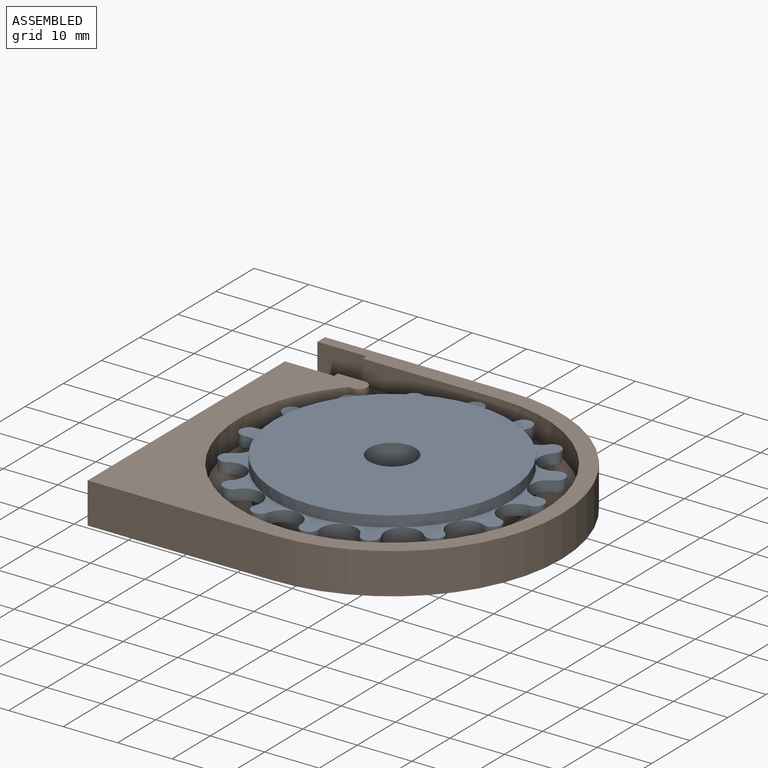
[diagram: assembled view]
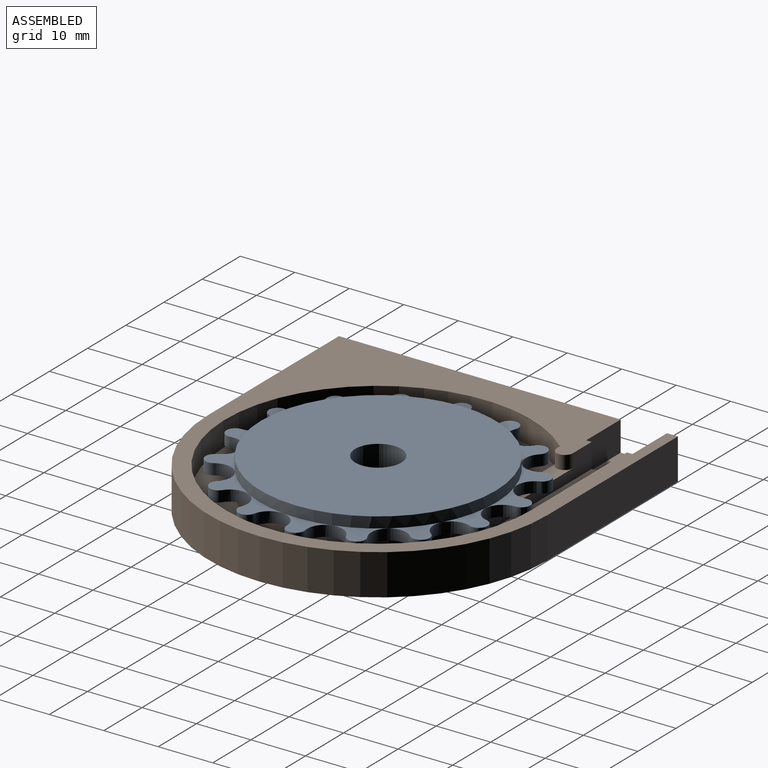
[diagram: assembled view, second angle]
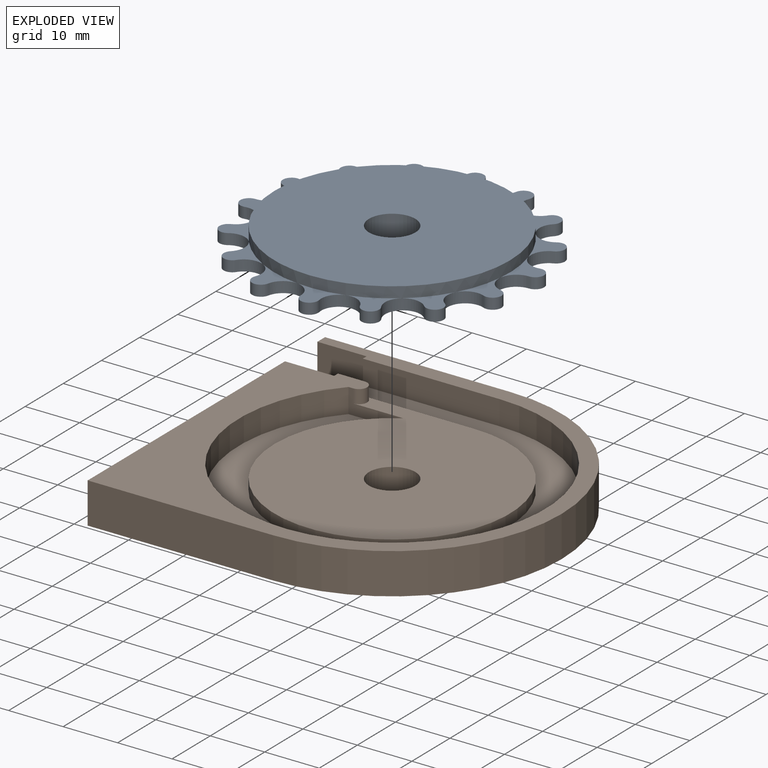
[diagram: exploded view]
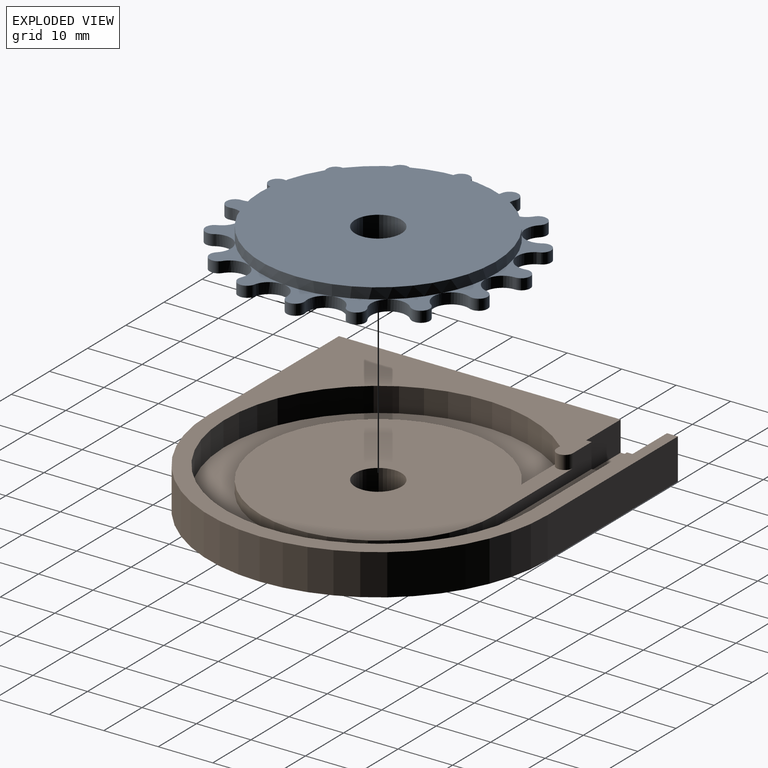
[diagram: exploded view, second angle]
ASSEMBLY  parts=2 mates=2
PART A: 52 faces, bbox 52x52x4 mm
  f0: plane 8.27x6.04mm, normal (0,0,1), area 17.7mm2, adj f41,f42,f43,f50
  f1: plane 7.17x7.01mm, normal (0,0,1), area 17.7mm2, adj f43,f44,f45,f50
  f2: plane 7.16x7.02mm, normal (0,0,1), area 17.7mm2, adj f15,f45,f46,f50
  f3: plane 8.27x6.04mm, normal (0,0,1), area 17.7mm2, adj f15,f16,f17,f50
  f4: plane 8.27x6.04mm, normal (0,0,1), area 17.7mm2, adj f17,f18,f19,f50
  f5: plane 7.17x7.01mm, normal (0,0,1), area 17.7mm2, adj f19,f20,f21,f50
  f6: plane 7.16x7.02mm, normal (0,0,1), area 17.7mm2, adj f21,f22,f23,f50
  f7: plane 8.27x6.04mm, normal (0,0,1), area 17.7mm2, adj f23,f24,f25,f50
  f8: plane 8.27x6.04mm, normal (0,0,1), area 17.7mm2, adj f25,f26,f27,f50
  f9: plane 7.17x7.01mm, normal (0,0,1), area 17.7mm2, adj f27,f28,f29,f50
  f10: plane 7.16x7.02mm, normal (0,0,1), area 17.7mm2, adj f29,f30,f31,f50
  f11: plane 8.27x6.04mm, normal (0,0,1), area 17.7mm2, adj f31,f32,f33,f50
  f12: plane 8.27x6.04mm, normal (0,0,1), area 17.7mm2, adj f33,f34,f35,f50
  f13: plane 7.17x7.01mm, normal (0,0,1), area 17.7mm2, adj f35,f36,f37,f50
  f14: plane 7.16x7.02mm, normal (0,0,1), area 17.7mm2, adj f37,f38,f39,f50
  f15: cylinder r=3.25mm len=6.17mm, axis (0,0,-1), area 19.4mm2, adj f2,f3,f16,f46,f49
  f16: cylinder r=1.62mm len=3.23mm, axis (0,0,-1), area 10.6mm2, adj f3,f15,f17,f49
  f17: cylinder r=3.25mm len=6.48mm, axis (0,0,-1), area 19.4mm2, adj f3,f4,f16,f18,f49
  f18: cylinder r=1.62mm len=3.24mm, axis (0,0,-1), area 10.6mm2, adj f4,f17,f19,f49
  f19: cylinder r=3.25mm len=6.12mm, axis (0,0,-1), area 19.4mm2, adj f4,f5,f18,f20,f49
  f20: cylinder r=1.62mm len=3.06mm, axis (0,0,-1), area 10.6mm2, adj f5,f19,f21,f49
  f21: cylinder r=3.25mm len=5.39mm, axis (0,0,-1), area 19.4mm2, adj f5,f6,f20,f22,f49
  f22: cylinder r=1.62mm len=3.01mm, axis (0,0,-1), area 10.6mm2, adj f6,f21,f23,f49
  f23: cylinder r=3.25mm len=6.17mm, axis (0,0,-1), area 19.4mm2, adj f6,f7,f22,f24,f49
  f24: cylinder r=1.62mm len=3.23mm, axis (0,0,-1), area 10.6mm2, adj f7,f23,f25,f49
  f25: cylinder r=3.25mm len=6.48mm, axis (0,0,-1), area 19.4mm2, adj f7,f8,f24,f26,f49
  f26: cylinder r=1.62mm len=3.24mm, axis (0,0,-1), area 10.6mm2, adj f8,f25,f27,f49
  f27: cylinder r=3.25mm len=6.12mm, axis (0,0,-1), area 19.4mm2, adj f8,f9,f26,f28,f49
  f28: cylinder r=1.62mm len=3.06mm, axis (0,0,-1), area 10.6mm2, adj f9,f27,f29,f49
  f29: cylinder r=3.25mm len=5.39mm, axis (0,0,-1), area 19.4mm2, adj f9,f10,f28,f30,f49
  f30: cylinder r=1.62mm len=3.01mm, axis (0,0,-1), area 10.6mm2, adj f10,f29,f31,f49
  f31: cylinder r=3.25mm len=6.17mm, axis (0,0,-1), area 19.4mm2, adj f10,f11,f30,f32,f49
  f32: cylinder r=1.62mm len=3.23mm, axis (0,0,-1), area 10.6mm2, adj f11,f31,f33,f49
  f33: cylinder r=3.25mm len=6.48mm, axis (0,0,-1), area 19.4mm2, adj f11,f12,f32,f34,f49
  f34: cylinder r=1.62mm len=3.24mm, axis (0,0,-1), area 10.6mm2, adj f12,f33,f35,f49
  f35: cylinder r=3.25mm len=6.12mm, axis (0,0,-1), area 19.4mm2, adj f12,f13,f34,f36,f49
  f36: cylinder r=1.62mm len=3.06mm, axis (0,0,-1), area 10.6mm2, adj f13,f35,f37,f49
  f37: cylinder r=3.25mm len=5.39mm, axis (0,0,-1), area 19.4mm2, adj f13,f14,f36,f38,f49
  f38: cylinder r=1.62mm len=3.01mm, axis (0,0,-1), area 10.6mm2, adj f14,f37,f39,f49
  f39: cylinder r=3.25mm len=6.17mm, axis (0,0,-1), area 19.4mm2, adj f14,f38,f40,f48,f49
  f40: cylinder r=1.62mm len=3.23mm, axis (0,0,-1), area 10.6mm2, adj f39,f41,f48,f49
  f41: cylinder r=3.25mm len=6.48mm, axis (0,0,-1), area 19.4mm2, adj f0,f40,f42,f48,f49
  f42: cylinder r=1.62mm len=3.24mm, axis (0,0,-1), area 10.6mm2, adj f0,f41,f43,f49
  f43: cylinder r=3.25mm len=6.12mm, axis (0,0,-1), area 19.4mm2, adj f0,f1,f42,f44,f49
  f44: cylinder r=1.62mm len=3.06mm, axis (0,0,-1), area 10.6mm2, adj f1,f43,f45,f49
  f45: cylinder r=3.25mm len=5.39mm, axis (0,0,-1), area 19.4mm2, adj f1,f2,f44,f46,f49
  f46: cylinder r=1.62mm len=3.01mm, axis (0,0,-1), area 10.6mm2, adj f2,f15,f45,f49
  f47: cylinder r=4.25mm len=8.5mm, axis (0,0,-1), area 106.8mm2, adj f49,f51
  f48: plane 8.27x6.04mm, normal (0,0,1), area 17.7mm2, adj f39,f40,f41,f50
  f49: plane 52.01x52.01mm, normal (0,0,-1), area 1693.2mm2, adj f15,f16,f17,f18,f19,f20,f21,f22
  f50: cylinder r=21.6mm len=43.21mm, axis (0,0,-1), area 271.5mm2, adj f0,f1,f2,f3,f4,f5,f6,f7
  f51: plane 43.21x43.21mm, normal (0,0,1), area 1409.6mm2, adj f47,f50
PART B: 19 faces, bbox 65.2x62.2x7.5 mm
  f0: plane 9.04x5.5mm, normal (0,-1,0), area 49.7mm2, adj f1,f6,f17,f18
  f1: plane 9.04x8.5mm, normal (0,0,1), area 76.8mm2, adj f0,f2,f6,f18
  f2: plane 9.04x5.5mm, normal (0,1,0), area 49.7mm2, adj f1,f6,f17,f18
  f3: plane 34.11x7.5mm, normal (0,-1,0), area 255.8mm2, adj f4,f6,f14,f17
  f4: cylinder r=31.1mm len=62.21mm, axis (0,0,1), area 732.9mm2, adj f3,f5,f14,f17
  f5: plane 34.11x7.5mm, normal (0,1,0), area 255.8mm2, adj f4,f6,f14,f17
  f6: plane 62.21x7.5mm, normal (-1,0,0), area 419.8mm2, adj f0,f1,f2,f3,f5,f14,f17
  f7: plane 25.07x4.5mm, normal (0,-1,0), area 112.8mm2, adj f8,f15,f17,f18
  f8: cylinder r=28.1mm len=56.21mm, axis (0,0,1), area 687.5mm2, adj f7,f9,f15,f17
  f9: plane 10.08x4.5mm, normal (0,-1,0), area 22.4mm2, adj f8,f10,f13,f15,f16,f17
  f10: cylinder r=21.6mm len=43.21mm, axis (0,0,1), area 248.5mm2, adj f9,f11,f13,f15
  f11: plane 25.07x4.5mm, normal (0,1,0), area 62.4mm2, adj f10,f13,f15,f16,f17,f18
  f12: cylinder r=4.25mm len=8.5mm, axis (0,0,1), area 133.5mm2, adj f13,f14
  f13: plane 43.21x43.21mm, normal (0,0,1), area 1444.3mm2, adj f9,f10,f11,f12,f16
  f14: plane 65.21x62.21mm, normal (0,0,-1), area 3584.7mm2, adj f3,f4,f5,f6,f12
  f15: plane 56.21x56.21mm, normal (0,0,1), area 1061.6mm2, adj f7,f8,f9,f10,f11,f18
  f16: cylinder r=1.5mm len=3mm, axis (0,0,-1), area 11.8mm2, adj f9,f11,f13,f17
  f17: plane 65.21x62.21mm, normal (0,0,1), area 1001.9mm2, adj f0,f2,f3,f4,f5,f6,f7,f8
  f18: plane 8.5x5.5mm, normal (-1,0,0), area 17.5mm2, adj f0,f1,f2,f7,f11,f15,f17
PLACE A rot(axis=(0,0,-1),163.8deg) t=(-4.41,-1.73,1.73)mm
PLACE B t=(-4.41,-1.73,1.73)mm fixed
MATE planar A.f47 <-> B.f13  axis (0,0,-1) through (-4.41,-1.73,1.73)mm
MATE cylindrical A.f47 <-> B.f12  axis (0,0,-1) through (-4.41,-1.73,3.73)mm
